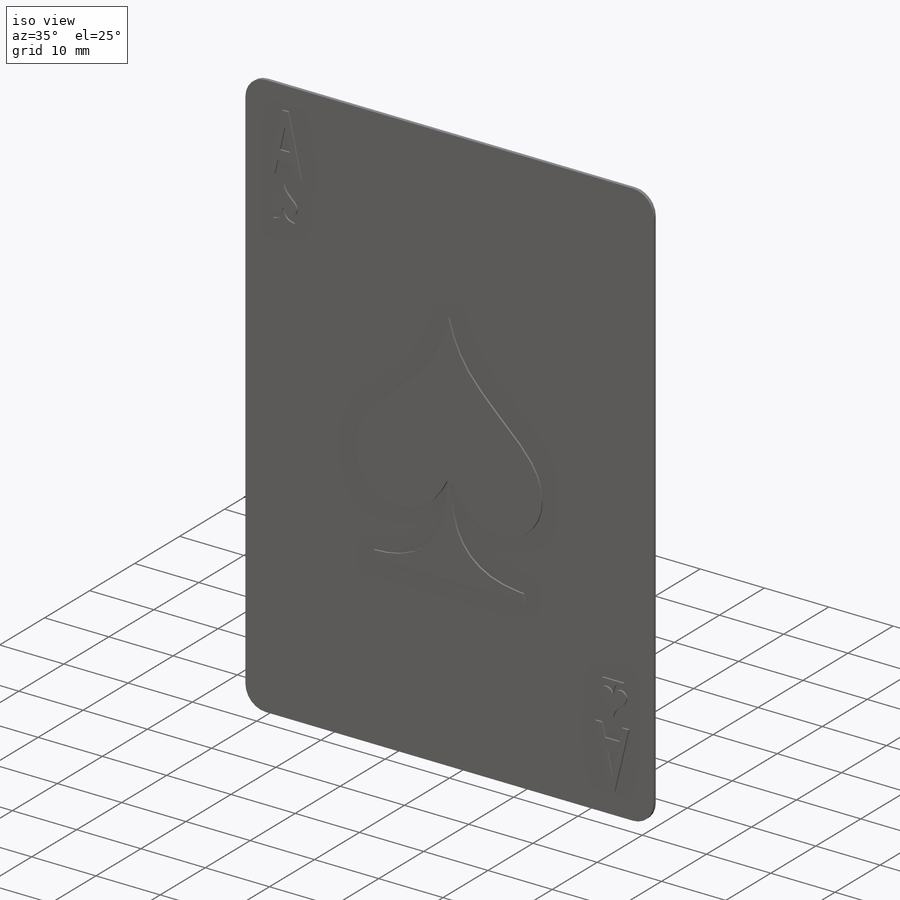
[diagram: iso view]
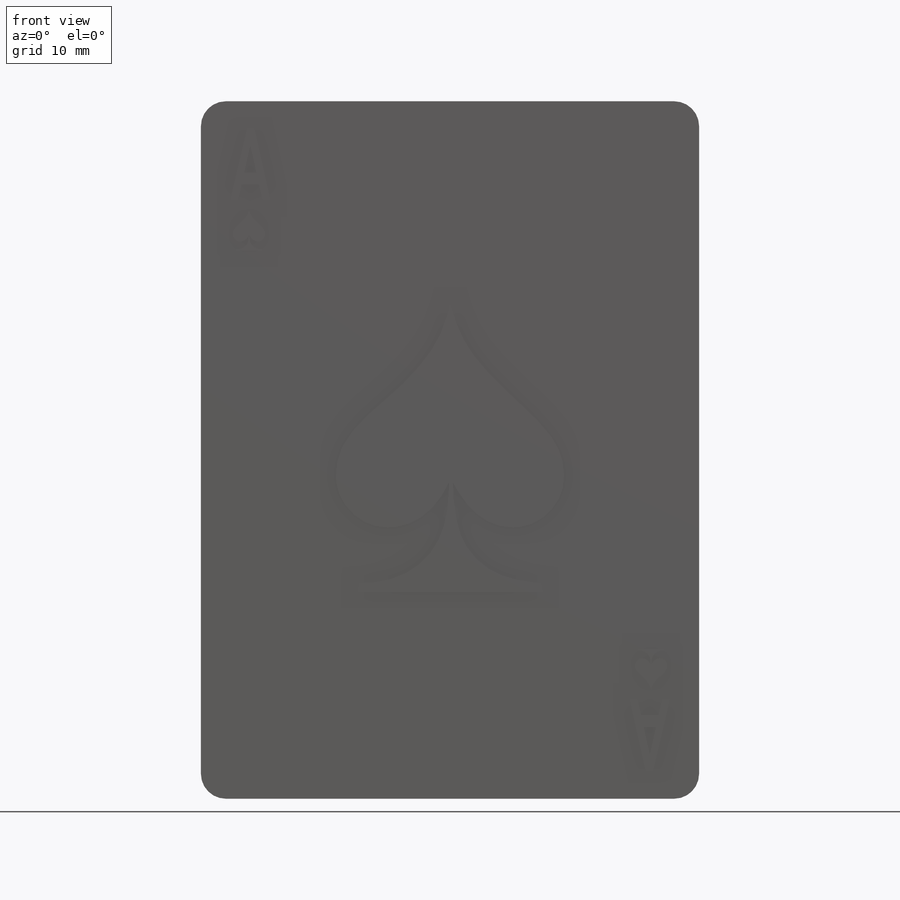
[diagram: front view]
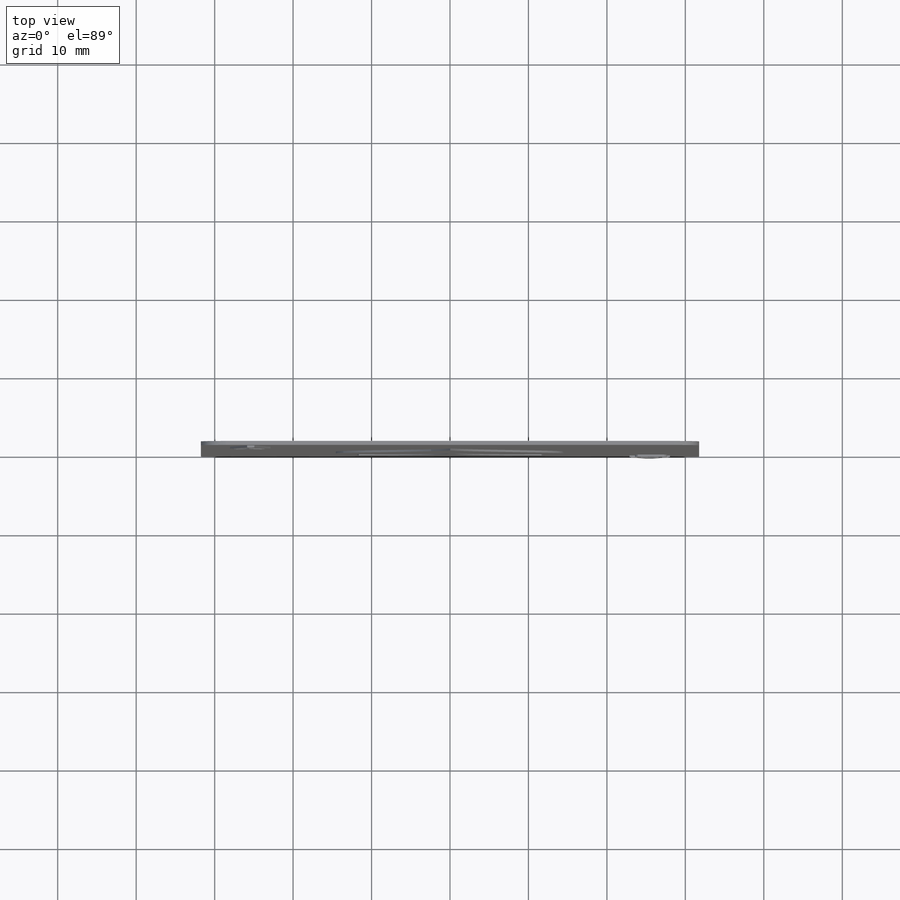
[diagram: top view]
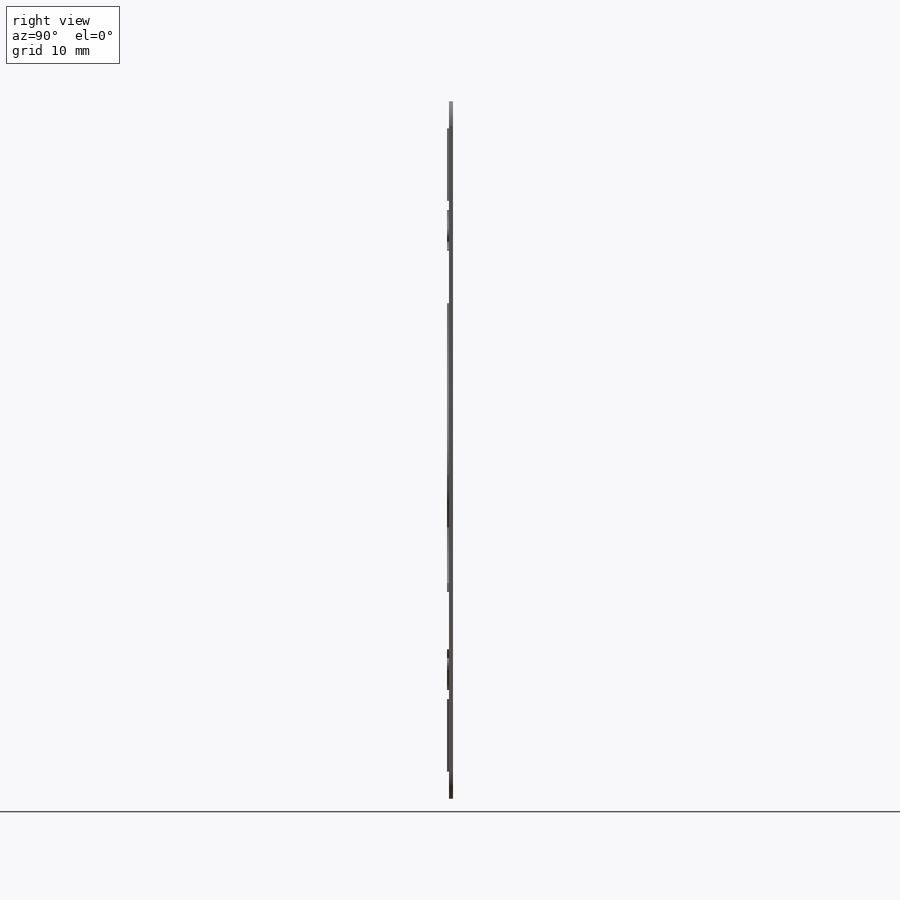
[diagram: right view]
SOLIDWORKS PART (.sldprt)
format: sldprt  version: not decoded by parser v0  size: 35,520,512 bytes
history: native  units: mm
features: delete_body x10, sketch x5, extrude x4, material x1, pattern_linear x1, pattern_circular x1, fillet x1 + 1 further entry (+12 scaffold rows collapsed)
feature tree (36):
  scaffold x12  (default folders/planes/origin — collapsed)
  material  "Material <not specified>"
  "Design Table"
  sketch  "Sketch1"  dims[D1=88.9mm D2=63.5mm]
  extrude  "Card Stock"  Depth=0.508mm
  sketch  "Sketch2"  dims[c1.D1=~12.997323mm c1.D2=~4.866163mm c1.D3=8.89mm c1.D4=6.35mm c1.D5=~25.614718mm c1.D6=6.35mm c1.D7=~13.284161mm c1.D8=8.89mm c1.D9=~14.165076mm c2.D4=~17.818843mm]
  extrude  "Corner Number and Suite Boss-Extrude"  Depth=0.254mm
  sketch  "Sketch3"  dims[D1=21.209mm D2=19.05mm D3=19.7993mm]
  extrude  "Suite Boss-Extrude"  Depth=0.254mm
  sketch  "Sketch4"  dims[c1.D1=52.07mm c1.D2=13.97mm c2.D1=69.85mm c2.D2=29.21mm c2.D3=50.8mm]
  extrude  "Center Face Cards Symbol Boss"  [1 undecoded]
  pattern_linear  "LPattern Suite"  Count1=4 Count2=3 Spacing1=10.16mm Spacing2=12.7mm
  pattern_circular  "Suite Boss CirPattern"  Count=2 Angle=360deg
  sketch  "Sketch5"  dims[D1=6.35mm]
  fillet  "Fillet .125"  Radius=3.175mm
  delete_body  "Body-Delete Ace"
  delete_body  "Body-Delete 2"
  delete_body  "Body-Delete 3"
  delete_body  "Body-Delete 4"
  delete_body  "Body-Delete 5"
  delete_body  "Body-Delete 6"
  delete_body  "Body-Delete 7"
  delete_body  "Body-Delete 8"
  delete_body  "Body-Delete 9"
  delete_body  "Body-Delete 10"
decode coverage: 11 of 22 modeling features carry decoded parameters; 1 rows unclassified (native names shown)
note: ~ marks probable driven/reference dimensions
note: 1 parameter value undecoded
note: suppression state not decoded; provenance and decode notes live in map.json
